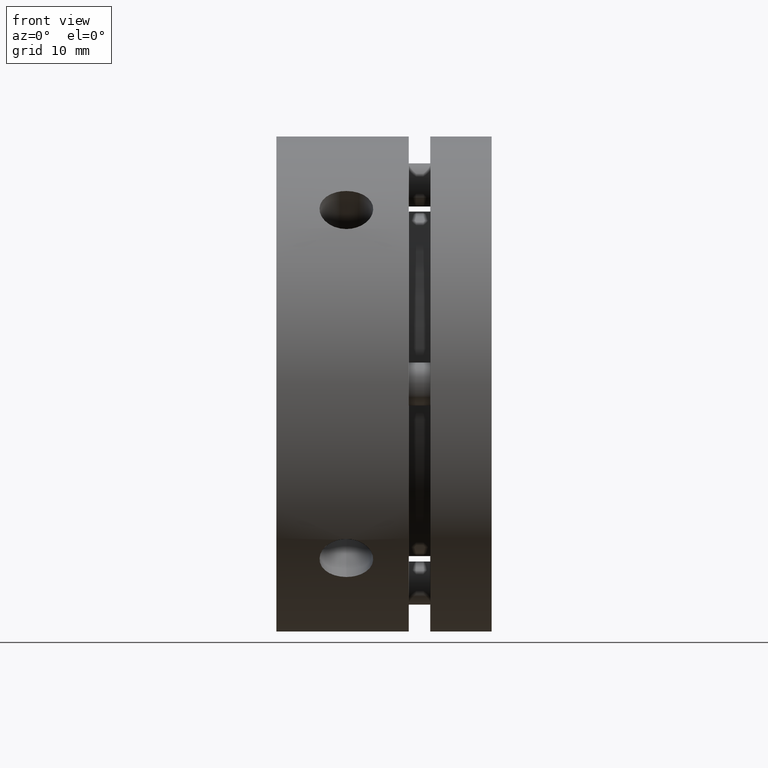
[diagram: clean part render]
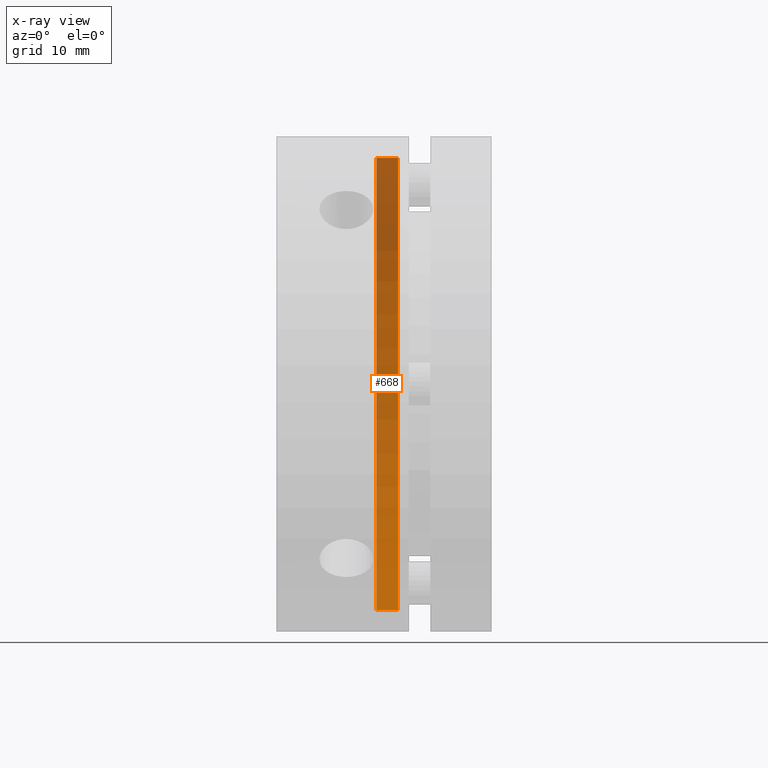
[diagram: x-ray — body ghosted, one internal face saturated and labeled with its STEP entity id]
A machine part, front view, then the same camera in x-ray: the body is ghosted and one INTERNAL B-rep face — a face not visible from any outside direction — is saturated and labeled: STEP entity #668.
In plain terms, the highlighted cylindrical surface (partial cylindrical patch) has radius 21 mm, axis along (-1, 0, 0).
Its self-contained STEP definition (entity closure, byte-faithful):
#36 = FACE_OUTER_BOUND ( 'NONE', #1812, .T. ) ;
#45 = CYLINDRICAL_SURFACE ( 'NONE', #2714, 21.00000000000000700 ) ;
#203 = CIRCLE ( 'NONE', #2308, 21.00000000000000700 ) ;
#207 = CIRCLE ( 'NONE', #2309, 21.00000000000000700 ) ;
#328 = LINE ( 'NONE', #876, #334 ) ;
#334 = VECTOR ( 'NONE', #878, 1000.000000000000000 ) ;
#342 = LINE ( 'NONE', #885, #348 ) ;
#348 = VECTOR ( 'NONE', #887, 1000.000000000000000 ) ;
#668 = ADVANCED_FACE ( 'NONE', ( #36 ), #45, .F. ) ;
#876 = CARTESIAN_POINT ( 'NONE',  ( 10.30000000000001300, 2.571758278209442400E-015, -21.00000000000000700 ) ) ;
#878 = DIRECTION ( 'NONE',  ( -1.000000000000000000, 0.0000000000000000000, 0.0000000000000000000 ) ) ;
#885 = CARTESIAN_POINT ( 'NONE',  ( 10.30000000000001300, 0.0000000000000000000, 21.00000000000000700 ) ) ;
#887 = DIRECTION ( 'NONE',  ( -1.000000000000000000, 0.0000000000000000000, 0.0000000000000000000 ) ) ;
#979 = CARTESIAN_POINT ( 'NONE',  ( 9.300000000000018500, 0.0000000000000000000, 0.0000000000000000000 ) ) ;
#980 = DIRECTION ( 'NONE',  ( -1.000000000000000000, 0.0000000000000000000, 0.0000000000000000000 ) ) ;
#981 = DIRECTION ( 'NONE',  ( 0.0000000000000000000, 0.0000000000000000000, 1.000000000000000000 ) ) ;
#982 = CARTESIAN_POINT ( 'NONE',  ( 11.30000000000000800, 0.0000000000000000000, 0.0000000000000000000 ) ) ;
#983 = DIRECTION ( 'NONE',  ( 1.000000000000000000, -0.0000000000000000000, -0.0000000000000000000 ) ) ;
#984 = DIRECTION ( 'NONE',  ( 0.0000000000000000000, 0.0000000000000000000, 1.000000000000000000 ) ) ;
#1595 = VERTEX_POINT ( 'NONE', #3471 ) ;
#1605 = VERTEX_POINT ( 'NONE', #3481 ) ;
#1607 = VERTEX_POINT ( 'NONE', #3483 ) ;
#1616 = VERTEX_POINT ( 'NONE', #3492 ) ;
#1698 = ORIENTED_EDGE ( 'NONE', *, *, #2391, .T. ) ;
#1706 = ORIENTED_EDGE ( 'NONE', *, *, #2390, .T. ) ;
#1712 = ORIENTED_EDGE ( 'NONE', *, *, #2349, .F. ) ;
#1714 = ORIENTED_EDGE ( 'NONE', *, *, #2353, .T. ) ;
#1812 = EDGE_LOOP ( 'NONE', ( #1712, #1698, #1714, #1706 ) ) ;
#2308 = AXIS2_PLACEMENT_3D ( 'NONE', #979, #980, #981 ) ;
#2309 = AXIS2_PLACEMENT_3D ( 'NONE', #982, #983, #984 ) ;
#2349 = EDGE_CURVE ( 'NONE', #1595, #1607, #328, .T. ) ;
#2353 = EDGE_CURVE ( 'NONE', #1616, #1605, #342, .T. ) ;
#2390 = EDGE_CURVE ( 'NONE', #1605, #1607, #203, .T. ) ;
#2391 = EDGE_CURVE ( 'NONE', #1595, #1616, #207, .T. ) ;
#2714 = AXIS2_PLACEMENT_3D ( 'NONE', #3084, #3082, #3080 ) ;
#3080 = DIRECTION ( 'NONE',  ( 0.0000000000000000000, 0.0000000000000000000, 1.000000000000000000 ) ) ;
#3082 = DIRECTION ( 'NONE',  ( -1.000000000000000000, 0.0000000000000000000, 0.0000000000000000000 ) ) ;
#3084 = CARTESIAN_POINT ( 'NONE',  ( 10.30000000000001300, 0.0000000000000000000, 0.0000000000000000000 ) ) ;
#3471 = CARTESIAN_POINT ( 'NONE',  ( 11.30000000000000800, 2.571758278209442400E-015, -21.00000000000000700 ) ) ;
#3481 = CARTESIAN_POINT ( 'NONE',  ( 9.300000000000018500, 0.0000000000000000000, 21.00000000000000700 ) ) ;
#3483 = CARTESIAN_POINT ( 'NONE',  ( 9.300000000000018500, 2.571758278209442400E-015, -21.00000000000000700 ) ) ;
#3492 = CARTESIAN_POINT ( 'NONE',  ( 11.30000000000000800, 0.0000000000000000000, 21.00000000000000700 ) ) ;